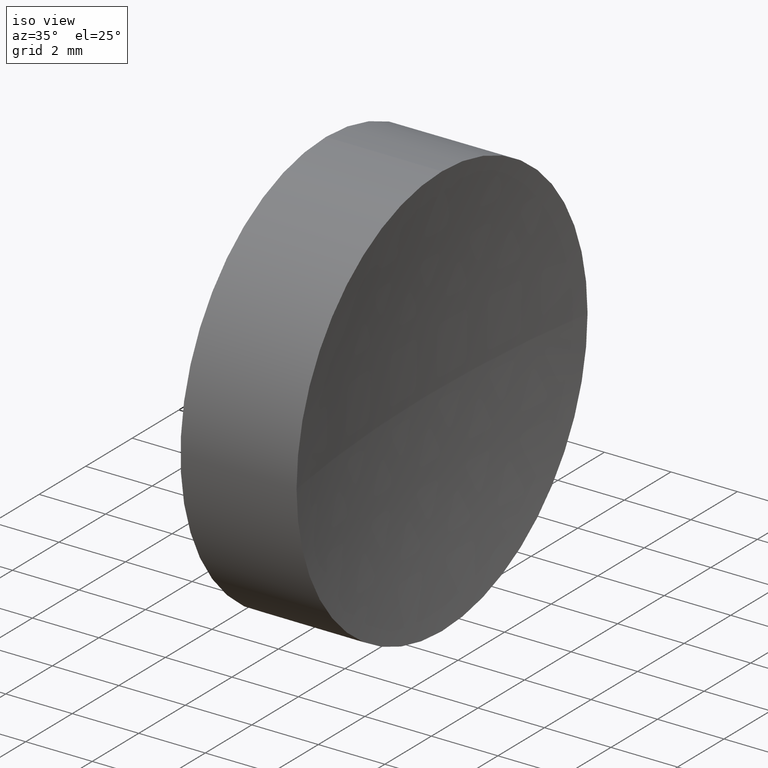
[diagram: clean part render]
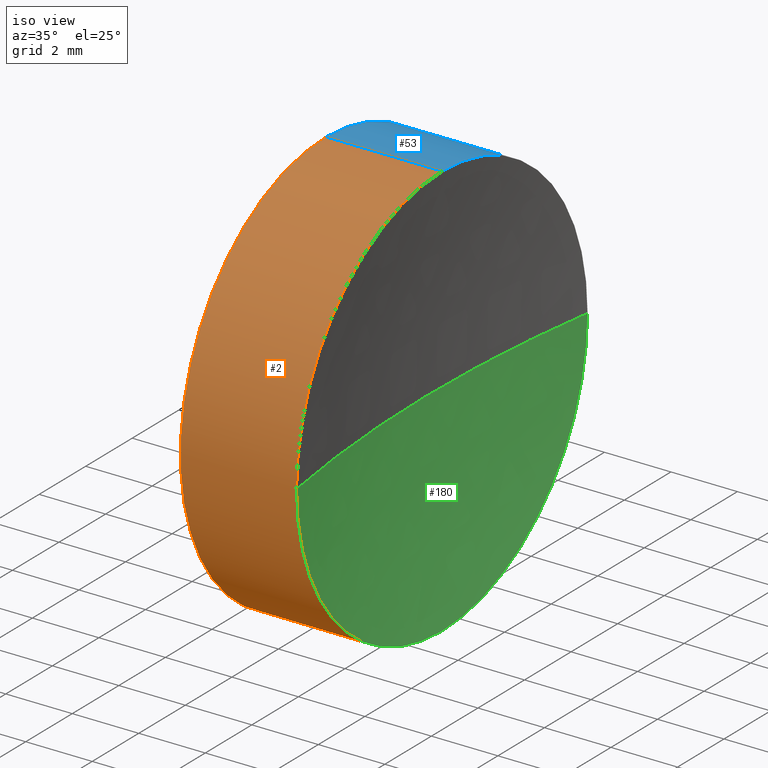
[diagram: same view with three faces highlighted in distinct colors, each labeled with its STEP entity id]
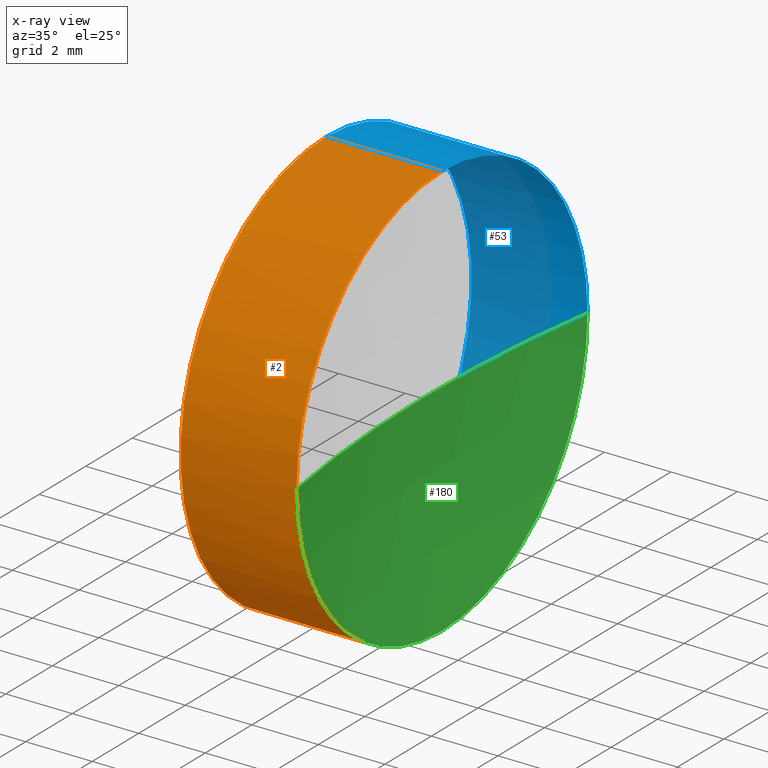
[diagram: x-ray of the same camera — body ghosted, the three highlighted faces saturated]
A machine part, iso view with three faces highlighted in distinct colors.
The next image is the same camera in x-ray (body ghosted, the three faces saturated) — at least one of them is partly hidden behind the body in this view.
Their STEP definitions:

[orange] entity #2 — the highlighted cylindrical surface (partial cylindrical patch) has radius 6.25 mm, axis along (-1, -0, -0).
#1 = LINE ( 'NONE', #40, #65 ) ;
#2 = ADVANCED_FACE ( 'NONE', ( #54 ), #169, .T. ) ;
#3 = CARTESIAN_POINT ( 'NONE',  ( 54.49257150108255100, 34.68901056168621700, 0.0000000000000000000 ) ) ;
#8 = DIRECTION ( 'NONE',  ( -1.000000000000000000, -0.0000000000000000000, -0.0000000000000000000 ) ) ;
#10 = CARTESIAN_POINT ( 'NONE',  ( 57.54632776745975800, 34.68901056168621700, 0.0000000000000000000 ) ) ;
#11 = CARTESIAN_POINT ( 'NONE',  ( 61.03762619563895700, 34.68901056168621700, 6.250000000000004400 ) ) ;
#14 = DIRECTION ( 'NONE',  ( -1.000000000000000000, -0.0000000000000000000, -0.0000000000000000000 ) ) ;
#15 = VERTEX_POINT ( 'NONE', #164 ) ;
#20 = EDGE_CURVE ( 'NONE', #47, #148, #161, .T. ) ;
#21 = CIRCLE ( 'NONE', #156, 6.250000000000005300 ) ;
#31 = DIRECTION ( 'NONE',  ( -1.000000000000000000, -0.0000000000000000000, -0.0000000000000000000 ) ) ;
#32 = CARTESIAN_POINT ( 'NONE',  ( 61.03762619563895700, 28.43901056168619600, -7.654042494670957600E-016 ) ) ;
#40 = CARTESIAN_POINT ( 'NONE',  ( 54.49257150108255100, 34.68901056168621700, -6.250000000000001800 ) ) ;
#47 = VERTEX_POINT ( 'NONE', #32 ) ;
#49 = DIRECTION ( 'NONE',  ( 0.0000000000000000000, 0.0000000000000000000, 1.000000000000000000 ) ) ;
#50 = CARTESIAN_POINT ( 'NONE',  ( 61.03762619563895700, 34.68901056168621700, 0.0000000000000000000 ) ) ;
#54 = FACE_OUTER_BOUND ( 'NONE', #105, .T. ) ;
#56 = EDGE_CURVE ( 'NONE', #106, #66, #1, .T. ) ;
#64 = VECTOR ( 'NONE', #138, 1000.000000000000000 ) ;
#65 = VECTOR ( 'NONE', #94, 1000.000000000000000 ) ;
#66 = VERTEX_POINT ( 'NONE', #95 ) ;
#72 = DIRECTION ( 'NONE',  ( -1.000000000000000000, -0.0000000000000000000, -0.0000000000000000000 ) ) ;
#75 = DIRECTION ( 'NONE',  ( 0.0000000000000000000, 0.0000000000000000000, 1.000000000000000000 ) ) ;
#76 = ORIENTED_EDGE ( 'NONE', *, *, #20, .T. ) ;
#82 = DIRECTION ( 'NONE',  ( 0.0000000000000000000, 0.0000000000000000000, 1.000000000000000000 ) ) ;
#94 = DIRECTION ( 'NONE',  ( -1.000000000000000000, -0.0000000000000000000, -0.0000000000000000000 ) ) ;
#95 = CARTESIAN_POINT ( 'NONE',  ( 57.54632776745975800, 34.68901056168621700, -6.249999999999998200 ) ) ;
#96 = LINE ( 'NONE', #155, #64 ) ;
#105 = EDGE_LOOP ( 'NONE', ( #154, #110, #76, #123, #163 ) ) ;
#106 = VERTEX_POINT ( 'NONE', #171 ) ;
#108 = AXIS2_PLACEMENT_3D ( 'NONE', #3, #31, #82 ) ;
#110 = ORIENTED_EDGE ( 'NONE', *, *, #119, .T. ) ;
#111 = AXIS2_PLACEMENT_3D ( 'NONE', #10, #72, #49 ) ;
#119 = EDGE_CURVE ( 'NONE', #106, #47, #21, .T. ) ;
#123 = ORIENTED_EDGE ( 'NONE', *, *, #141, .T. ) ;
#126 = CIRCLE ( 'NONE', #111, 6.249999999999998200 ) ;
#132 = AXIS2_PLACEMENT_3D ( 'NONE', #147, #14, #181 ) ;
#138 = DIRECTION ( 'NONE',  ( -1.000000000000000000, -0.0000000000000000000, -0.0000000000000000000 ) ) ;
#141 = EDGE_CURVE ( 'NONE', #148, #15, #96, .T. ) ;
#147 = CARTESIAN_POINT ( 'NONE',  ( 61.03762619563895700, 34.68901056168621700, 0.0000000000000000000 ) ) ;
#148 = VERTEX_POINT ( 'NONE', #11 ) ;
#154 = ORIENTED_EDGE ( 'NONE', *, *, #56, .F. ) ;
#155 = CARTESIAN_POINT ( 'NONE',  ( 54.49257150108255100, 34.68901056168621700, 6.250000000000001800 ) ) ;
#156 = AXIS2_PLACEMENT_3D ( 'NONE', #50, #8, #75 ) ;
#161 = CIRCLE ( 'NONE', #132, 6.250000000000005300 ) ;
#163 = ORIENTED_EDGE ( 'NONE', *, *, #165, .F. ) ;
#164 = CARTESIAN_POINT ( 'NONE',  ( 57.54632776745975800, 34.68901056168621700, 6.249999999999998200 ) ) ;
#165 = EDGE_CURVE ( 'NONE', #66, #15, #126, .T. ) ;
#169 = CYLINDRICAL_SURFACE ( 'NONE', #108, 6.250000000000001800 ) ;
#171 = CARTESIAN_POINT ( 'NONE',  ( 61.03762619563895700, 34.68901056168621700, -6.250000000000004400 ) ) ;
#181 = DIRECTION ( 'NONE',  ( 0.0000000000000000000, 0.0000000000000000000, 1.000000000000000000 ) ) ;

[blue] entity #53 — the highlighted cylindrical surface (partial cylindrical patch) has radius 6.25 mm, axis along (-1, -0, -0).
#1 = LINE ( 'NONE', #40, #65 ) ;
#5 = FACE_OUTER_BOUND ( 'NONE', #98, .T. ) ;
#7 = CARTESIAN_POINT ( 'NONE',  ( 61.03762619563895700, 34.68901056168621700, 0.0000000000000000000 ) ) ;
#11 = CARTESIAN_POINT ( 'NONE',  ( 61.03762619563895700, 34.68901056168621700, 6.250000000000004400 ) ) ;
#12 = CYLINDRICAL_SURFACE ( 'NONE', #145, 6.250000000000001800 ) ;
#15 = VERTEX_POINT ( 'NONE', #164 ) ;
#17 = DIRECTION ( 'NONE',  ( -1.000000000000000000, -0.0000000000000000000, -0.0000000000000000000 ) ) ;
#18 = CARTESIAN_POINT ( 'NONE',  ( 54.49257150108255100, 34.68901056168621700, 0.0000000000000000000 ) ) ;
#22 = ORIENTED_EDGE ( 'NONE', *, *, #46, .F. ) ;
#37 = CIRCLE ( 'NONE', #186, 6.249999999999998200 ) ;
#39 = ORIENTED_EDGE ( 'NONE', *, *, #92, .T. ) ;
#40 = CARTESIAN_POINT ( 'NONE',  ( 54.49257150108255100, 34.68901056168621700, -6.250000000000001800 ) ) ;
#41 = CARTESIAN_POINT ( 'NONE',  ( 57.54632776745975800, 34.68901056168621700, 0.0000000000000000000 ) ) ;
#43 = DIRECTION ( 'NONE',  ( 0.0000000000000000000, 0.0000000000000000000, 1.000000000000000000 ) ) ;
#46 = EDGE_CURVE ( 'NONE', #15, #66, #37, .T. ) ;
#53 = ADVANCED_FACE ( 'NONE', ( #5 ), #12, .T. ) ;
#55 = ORIENTED_EDGE ( 'NONE', *, *, #90, .T. ) ;
#56 = EDGE_CURVE ( 'NONE', #106, #66, #1, .T. ) ;
#64 = VECTOR ( 'NONE', #138, 1000.000000000000000 ) ;
#65 = VECTOR ( 'NONE', #94, 1000.000000000000000 ) ;
#66 = VERTEX_POINT ( 'NONE', #95 ) ;
#80 = CIRCLE ( 'NONE', #115, 6.250000000000005300 ) ;
#85 = DIRECTION ( 'NONE',  ( 0.0000000000000000000, 0.0000000000000000000, 1.000000000000000000 ) ) ;
#87 = ORIENTED_EDGE ( 'NONE', *, *, #56, .T. ) ;
#90 = EDGE_CURVE ( 'NONE', #148, #150, #158, .T. ) ;
#92 = EDGE_CURVE ( 'NONE', #150, #106, #80, .T. ) ;
#94 = DIRECTION ( 'NONE',  ( -1.000000000000000000, -0.0000000000000000000, -0.0000000000000000000 ) ) ;
#95 = CARTESIAN_POINT ( 'NONE',  ( 57.54632776745975800, 34.68901056168621700, -6.249999999999998200 ) ) ;
#96 = LINE ( 'NONE', #155, #64 ) ;
#98 = EDGE_LOOP ( 'NONE', ( #39, #87, #22, #143, #55 ) ) ;
#106 = VERTEX_POINT ( 'NONE', #171 ) ;
#112 = DIRECTION ( 'NONE',  ( 0.0000000000000000000, 0.0000000000000000000, 1.000000000000000000 ) ) ;
#115 = AXIS2_PLACEMENT_3D ( 'NONE', #7, #174, #85 ) ;
#128 = CARTESIAN_POINT ( 'NONE',  ( 61.03762619563895700, 34.68901056168621700, 0.0000000000000000000 ) ) ;
#129 = AXIS2_PLACEMENT_3D ( 'NONE', #128, #151, #167 ) ;
#133 = DIRECTION ( 'NONE',  ( -1.000000000000000000, -0.0000000000000000000, -0.0000000000000000000 ) ) ;
#138 = DIRECTION ( 'NONE',  ( -1.000000000000000000, -0.0000000000000000000, -0.0000000000000000000 ) ) ;
#141 = EDGE_CURVE ( 'NONE', #148, #15, #96, .T. ) ;
#143 = ORIENTED_EDGE ( 'NONE', *, *, #141, .F. ) ;
#145 = AXIS2_PLACEMENT_3D ( 'NONE', #18, #133, #43 ) ;
#148 = VERTEX_POINT ( 'NONE', #11 ) ;
#150 = VERTEX_POINT ( 'NONE', #185 ) ;
#151 = DIRECTION ( 'NONE',  ( -1.000000000000000000, -0.0000000000000000000, -0.0000000000000000000 ) ) ;
#155 = CARTESIAN_POINT ( 'NONE',  ( 54.49257150108255100, 34.68901056168621700, 6.250000000000001800 ) ) ;
#158 = CIRCLE ( 'NONE', #129, 6.250000000000005300 ) ;
#164 = CARTESIAN_POINT ( 'NONE',  ( 57.54632776745975800, 34.68901056168621700, 6.249999999999998200 ) ) ;
#167 = DIRECTION ( 'NONE',  ( 0.0000000000000000000, 0.0000000000000000000, 1.000000000000000000 ) ) ;
#171 = CARTESIAN_POINT ( 'NONE',  ( 61.03762619563895700, 34.68901056168621700, -6.250000000000004400 ) ) ;
#174 = DIRECTION ( 'NONE',  ( -1.000000000000000000, -0.0000000000000000000, -0.0000000000000000000 ) ) ;
#185 = CARTESIAN_POINT ( 'NONE',  ( 61.03762619563895700, 40.93901056168622400, 0.0000000000000000000 ) ) ;
#186 = AXIS2_PLACEMENT_3D ( 'NONE', #41, #17, #112 ) ;

[green] entity #180 — the highlighted spherical surface has radius 40 mm.
#7 = CARTESIAN_POINT ( 'NONE',  ( 61.03762619563895700, 34.68901056168621700, 0.0000000000000000000 ) ) ;
#8 = DIRECTION ( 'NONE',  ( -1.000000000000000000, -0.0000000000000000000, -0.0000000000000000000 ) ) ;
#13 = FACE_OUTER_BOUND ( 'NONE', #172, .T. ) ;
#21 = CIRCLE ( 'NONE', #156, 6.250000000000005300 ) ;
#27 = AXIS2_PLACEMENT_3D ( 'NONE', #134, #44, #170 ) ;
#32 = CARTESIAN_POINT ( 'NONE',  ( 61.03762619563895700, 28.43901056168619600, -7.654042494670957600E-016 ) ) ;
#34 = VERTEX_POINT ( 'NONE', #127 ) ;
#35 = DIRECTION ( 'NONE',  ( 0.0000000000000000000, 0.0000000000000000000, 1.000000000000000000 ) ) ;
#38 = ORIENTED_EDGE ( 'NONE', *, *, #77, .F. ) ;
#44 = DIRECTION ( 'NONE',  ( 0.0000000000000000000, 1.224646799147353200E-016, -1.000000000000000000 ) ) ;
#47 = VERTEX_POINT ( 'NONE', #32 ) ;
#50 = CARTESIAN_POINT ( 'NONE',  ( 61.03762619563895700, 34.68901056168621700, 0.0000000000000000000 ) ) ;
#75 = DIRECTION ( 'NONE',  ( 0.0000000000000000000, 0.0000000000000000000, 1.000000000000000000 ) ) ;
#77 = EDGE_CURVE ( 'NONE', #47, #34, #120, .T. ) ;
#80 = CIRCLE ( 'NONE', #115, 6.250000000000005300 ) ;
#85 = DIRECTION ( 'NONE',  ( 0.0000000000000000000, 0.0000000000000000000, 1.000000000000000000 ) ) ;
#92 = EDGE_CURVE ( 'NONE', #150, #106, #80, .T. ) ;
#103 = CARTESIAN_POINT ( 'NONE',  ( 100.5463277688367200, 34.68901056168619600, 0.0000000000000000000 ) ) ;
#106 = VERTEX_POINT ( 'NONE', #171 ) ;
#107 = ORIENTED_EDGE ( 'NONE', *, *, #92, .F. ) ;
#113 = ORIENTED_EDGE ( 'NONE', *, *, #179, .T. ) ;
#115 = AXIS2_PLACEMENT_3D ( 'NONE', #7, #174, #85 ) ;
#118 = CARTESIAN_POINT ( 'NONE',  ( 100.5463277688367200, 34.68901056168619600, 0.0000000000000000000 ) ) ;
#119 = EDGE_CURVE ( 'NONE', #106, #47, #21, .T. ) ;
#120 = CIRCLE ( 'NONE', #27, 40.00000000000000000 ) ;
#124 = AXIS2_PLACEMENT_3D ( 'NONE', #118, #35, #183 ) ;
#127 = CARTESIAN_POINT ( 'NONE',  ( 60.54632776883671900, 34.68901056168619600, 0.0000000000000000000 ) ) ;
#131 = ORIENTED_EDGE ( 'NONE', *, *, #119, .F. ) ;
#134 = CARTESIAN_POINT ( 'NONE',  ( 100.5463277688367200, 34.68901056168619600, 0.0000000000000000000 ) ) ;
#136 = DIRECTION ( 'NONE',  ( 0.0000000000000000000, 0.0000000000000000000, -1.000000000000000000 ) ) ;
#142 = SPHERICAL_SURFACE ( 'NONE', #160, 40.00000000000000000 ) ;
#150 = VERTEX_POINT ( 'NONE', #185 ) ;
#156 = AXIS2_PLACEMENT_3D ( 'NONE', #50, #8, #75 ) ;
#157 = DIRECTION ( 'NONE',  ( 0.0000000000000000000, 1.000000000000000000, 0.0000000000000000000 ) ) ;
#160 = AXIS2_PLACEMENT_3D ( 'NONE', #103, #136, #157 ) ;
#170 = DIRECTION ( 'NONE',  ( 0.0000000000000000000, 1.000000000000000000, 1.224646799147353200E-016 ) ) ;
#171 = CARTESIAN_POINT ( 'NONE',  ( 61.03762619563895700, 34.68901056168621700, -6.250000000000004400 ) ) ;
#172 = EDGE_LOOP ( 'NONE', ( #38, #131, #107, #113 ) ) ;
#174 = DIRECTION ( 'NONE',  ( -1.000000000000000000, -0.0000000000000000000, -0.0000000000000000000 ) ) ;
#177 = CIRCLE ( 'NONE', #124, 39.99999999999999300 ) ;
#179 = EDGE_CURVE ( 'NONE', #150, #34, #177, .T. ) ;
#180 = ADVANCED_FACE ( 'NONE', ( #13 ), #142, .F. ) ;
#183 = DIRECTION ( 'NONE',  ( 1.000000000000000000, 0.0000000000000000000, 0.0000000000000000000 ) ) ;
#185 = CARTESIAN_POINT ( 'NONE',  ( 61.03762619563895700, 40.93901056168622400, 0.0000000000000000000 ) ) ;